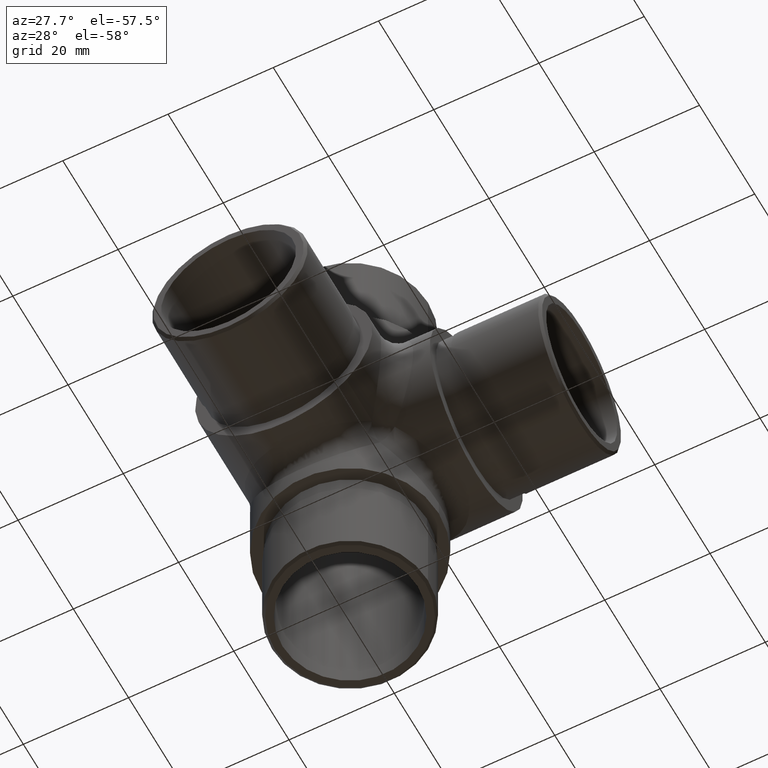
[diagram: clean part render]
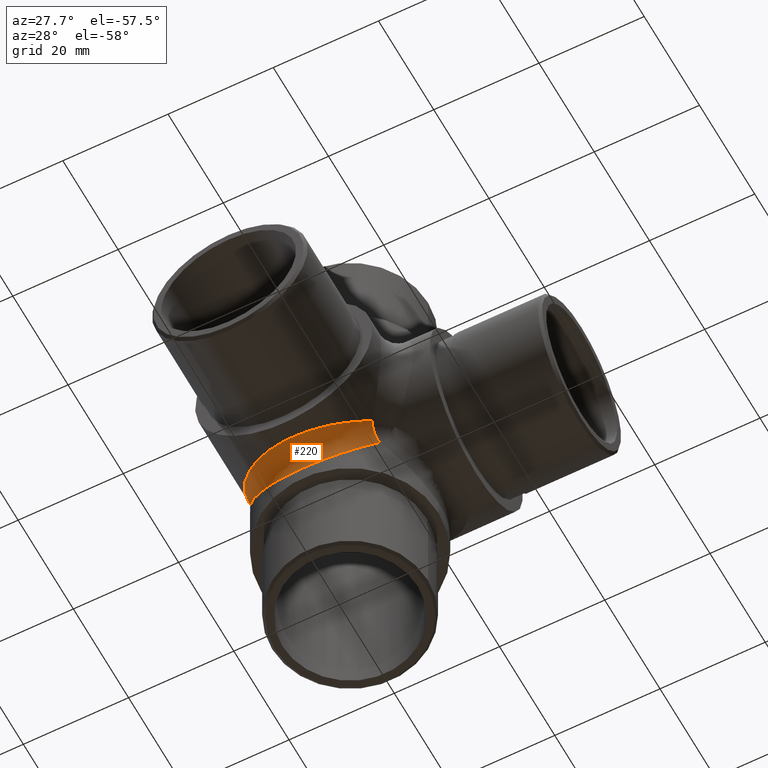
[diagram: same view with one face highlighted and labeled with its STEP entity id]
A machine part, auxiliary view. The second image highlights one B-rep face of the part: STEP entity #220.
In plain terms, the highlighted face is a freeform B-spline surface patch.
Its self-contained STEP definition (entity closure, byte-faithful):
#75 = CARTESIAN_POINT ( 'NONE',  ( 7.453532806663808700, 28.80349585227579100, -15.19650414771683000 ) ) ;
#163 = CARTESIAN_POINT ( 'NONE',  ( -1.902788127804586200, 27.23690582862855400, -16.76309417136459600 ) ) ;
#204 = CARTESIAN_POINT ( 'NONE',  ( 10.70188425443897800, 27.86280451610095500, -13.04133064285715300 ) ) ;
#220 = ADVANCED_FACE ( 'NONE', ( #12002 ), #5267, .F. ) ;
#285 = CARTESIAN_POINT ( 'NONE',  ( -16.85000000000501400, 42.14938286354089300, -1.850617136462172400 ) ) ;
#373 = CARTESIAN_POINT ( 'NONE',  ( -14.92931218146492100, 34.11833234476084400, -7.985904076284272800 ) ) ;
#542 = CARTESIAN_POINT ( 'NONE',  ( -0.5560784148173243400, 19.61442305918737700, -30.17443793565359300 ) ) ;
#1099 = CARTESIAN_POINT ( 'NONE',  ( 8.672491884074681000, 26.09440299057065400, -14.47047048483049800 ) ) ;
#1190 = CARTESIAN_POINT ( 'NONE',  ( 3.218198065705942100, 27.42345785544861400, -16.57654214454281000 ) ) ;
#1230 = CARTESIAN_POINT ( 'NONE',  ( 8.672491884075446600, 29.52952951516108700, -17.90559700942070600 ) ) ;
#1256 = CARTESIAN_POINT ( 'NONE',  ( 11.91474926299158100, 29.25682361225024800, -11.91474926299507000 ) ) ;
#1273 = CARTESIAN_POINT ( 'NONE',  ( 2.476042411215243700, 27.31240444192856700, -20.64904257481253300 ) ) ;
#1323 = CARTESIAN_POINT ( 'NONE',  ( -10.29547838493662600, 30.56406770563192100, -13.43593229436404400 ) ) ;
#1454 = CARTESIAN_POINT ( 'NONE',  ( -15.64424271561143300, 37.52568953613314300, -8.011238763878941100 ) ) ;
#1494 = CARTESIAN_POINT ( 'NONE',  ( -16.84999999999965000, 42.34566038153116800, -2.047061189644707700 ) ) ;
#1572 = CARTESIAN_POINT ( 'NONE',  ( -16.85000000000000100, 43.99999999999136000, 0.0000000000000000000 ) ) ;
#1711 = DIRECTION ( 'NONE',  ( 0.5773502691896256200, 0.5773502691896258400, 0.5773502691896258400 ) ) ;
#1762 = CARTESIAN_POINT ( 'NONE',  ( -16.85000000000000100, 26.36358636401375600, -21.82309936558652900 ) ) ;
#1962 = VERTEX_POINT ( 'NONE', #6215 ) ;
#1976 =( BOUNDED_CURVE ( )  B_SPLINE_CURVE ( 3, ( #5643, #542, #1762, #1572 ),
 .UNSPECIFIED., .F., .F. ) 
 B_SPLINE_CURVE_WITH_KNOTS ( ( 4, 4 ),
 ( 5.497787143782138000, 7.853981633974482800 ),
 .UNSPECIFIED. ) 
 CURVE ( )  GEOMETRIC_REPRESENTATION_ITEM ( )  RATIONAL_B_SPLINE_CURVE ( ( 1.000000000000000000, 0.5884556215767264800, 0.5884556215767264800, 1.000000000000000000 ) ) 
 REPRESENTATION_ITEM ( '' )  );
#2143 = CARTESIAN_POINT ( 'NONE',  ( 10.70188425443989300, 30.95866935713463200, -16.13719548389040200 ) ) ;
#2183 = CARTESIAN_POINT ( 'NONE',  ( -3.291881413840427300, 27.45399902426206400, -20.47383503525010400 ) ) ;
#2225 = CARTESIAN_POINT ( 'NONE',  ( 6.455366254731939300, 24.71360356666519200, -15.58636834060196300 ) ) ;
#2317 = CARTESIAN_POINT ( 'NONE',  ( -2.550014675954540300, 27.31371803310330600, -16.68628196688999700 ) ) ;
#2365 = CARTESIAN_POINT ( 'NONE',  ( -14.46498603253746200, 35.13117170450301100, -8.868828295482273900 ) ) ;
#2506 = CARTESIAN_POINT ( 'NONE',  ( -10.05015254536300500, 27.23344829585098400, -13.54994706065970600 ) ) ;
#3190 = CARTESIAN_POINT ( 'NONE',  ( 7.213578146960740500, 25.12948028608520100, -15.25027612370944000 ) ) ;
#3236 = CARTESIAN_POINT ( 'NONE',  ( 1.898126128376642200, 27.23468810016805400, -16.76531189982336700 ) ) ;
#3281 = CARTESIAN_POINT ( 'NONE',  ( -3.896595488052136100, 27.56090949159773700, -16.43909050839190300 ) ) ;
#3332 = CARTESIAN_POINT ( 'NONE',  ( 1.652916447724383600, 27.21088153747400900, -20.77466587201709600 ) ) ;
#3371 = CARTESIAN_POINT ( 'NONE',  ( -16.84999999999999800, 43.99999999999605600, 3.866285472213043400E-012 ) ) ;
#3424 = CARTESIAN_POINT ( 'NONE',  ( -16.84999999999999800, 43.99999999999563000, 3.456069506991500100E-012 ) ) ;
#3455 = CARTESIAN_POINT ( 'NONE',  ( -16.85000000000000100, 43.99999999999136000, 0.0000000000000000000 ) ) ;
#3468 = CARTESIAN_POINT ( 'NONE',  ( -7.953184658403215800, 29.12204700500458200, -18.40981127272918300 ) ) ;
#3549 = CARTESIAN_POINT ( 'NONE',  ( -13.04048794398737200, 30.75633850783578500, -10.70291108598500800 ) ) ;
#3769 = CARTESIAN_POINT ( 'NONE',  ( 14.74317638773951200, 29.25682361225184300, -14.74317638773951300 ) ) ;
#4176 = CARTESIAN_POINT ( 'NONE',  ( -5.684054341647695600, 28.11610382264072400, -19.65455402360686000 ) ) ;
#4224 = CARTESIAN_POINT ( 'NONE',  ( 10.97194022141144600, 31.14244169541671100, -12.85755830457519800 ) ) ;
#4266 = CARTESIAN_POINT ( 'NONE',  ( 10.29885095196055100, 30.56346336409610800, -13.43653663588252900 ) ) ;
#4304 = CARTESIAN_POINT ( 'NONE',  ( -5.684054341647159200, 24.34544597638449700, -15.88389617735100000 ) ) ;
#4353 = CARTESIAN_POINT ( 'NONE',  ( 11.32987064038780600, 31.50037211439286400, -15.46689860027742100 ) ) ;
#4388 = CARTESIAN_POINT ( 'NONE',  ( -16.85000000000000100, 22.17690063440801400, -17.63641363597571000 ) ) ;
#4486 = CARTESIAN_POINT ( 'NONE',  ( -8.897202919169362900, 29.59422045952774400, -14.40577954045980900 ) ) ;
#4489 = VERTEX_POINT ( 'NONE', #9643 ) ;
#5113 = EDGE_CURVE ( 'NONE', #1962, #11778, #12807, .T. ) ;
#5248 = CARTESIAN_POINT ( 'NONE',  ( 0.0006641771074964667600, 27.12971158839430100, -20.87510465173873100 ) ) ;
#5267 =( BOUNDED_SURFACE ( )  B_SPLINE_SURFACE ( 3, 2, ( 
 ( #8356, #4224, #5392 ),
 ( #4353, #4266, #8321 ),
 ( #2143, #10391, #204 ),
 ( #6243, #12619, #7261 ),
 ( #1230, #75, #1099 ),
 ( #12531, #7448, #3190 ),
 ( #11492, #9458, #2225 ),
 ( #7394, #11540, #6415 ),
 ( #6290, #1190, #11448 ),
 ( #1273, #3236, #11577 ),
 ( #3332, #8489, #5299 ),
 ( #5248, #7351, #6334 ),
 ( #5348, #12492, #7301 ),
 ( #10435, #163, #8409 ),
 ( #2183, #2317, #9421 ),
 ( #10346, #3281, #9510 ),
 ( #4176, #10483, #4304 ),
 ( #11400, #12574, #6370 ),
 ( #3468, #7629, #11621 ),
 ( #7582, #5523, #6634 ),
 ( #5429, #4486, #2506 ),
 ( #12662, #1323, #11748 ),
 ( #10654, #7533, #7490 ),
 ( #11798, #9595, #3549 ),
 ( #11706, #9693, #6458 ),
 ( #8533, #2365, #373 ),
 ( #1454, #5562, #11669 ),
 ( #9553, #12751, #6547 ),
 ( #1494, #285, #8707 ),
 ( #10744, #3371, #3424 ) ),
 .UNSPECIFIED., .F., .F., .T. ) 
 B_SPLINE_SURFACE_WITH_KNOTS ( ( 4, 2, 2, 2, 2, 2, 2, 2, 2, 2, 2, 2, 2, 2, 4 ),
 ( 3, 3 ),
 ( 5.497787143782138000, 5.645049299419172300, 5.792311455056207600, 5.939573610693242000, 6.086835766330276300, 6.234097921967310700, 6.381360077604345100, 6.528622233241379500, 6.675884388878413800, 6.823146544515448200, 6.970408700152482600, 7.117670855789517000, 7.264933011426551300, 7.559457322700620100, 7.853981633974689700 ),
 ( 0.0000000000000000000, 1.000000000000000000 ),
 .UNSPECIFIED. ) 
 GEOMETRIC_REPRESENTATION_ITEM ( )  RATIONAL_B_SPLINE_SURFACE ( (
 ( 1.000000000000000000, 0.8660254037843963000, 1.000000000000000000),
 ( 1.000000000000000000, 0.8518581657886972200, 1.000000000000000000),
 ( 1.000000000000000000, 0.8373286426275246000, 1.000000000000000000),
 ( 1.000000000000000000, 0.8087926538586344100, 1.000000000000000000),
 ( 1.000000000000000000, 0.7947862272503000100, 1.000000000000000000),
 ( 1.000000000000000000, 0.7686809988149589900, 1.000000000000000000),
 ( 1.000000000000000000, 0.7565887938669860800, 1.000000000000000000),
 ( 1.000000000000000000, 0.7357213436838919700, 1.000000000000000000),
 ( 1.000000000000000000, 0.7269560325907945500, 1.000000000000000000),
 ( 1.000000000000000000, 0.7139188639524968200, 1.000000000000000000),
 ( 1.000000000000000000, 0.7096565420258245100, 1.000000000000000000),
 ( 1.000000000000000000, 0.7062584530666733400, 1.000000000000000000),
 ( 1.000000000000000000, 0.7071257296527636600, 1.000000000000000000),
 ( 1.000000000000000000, 0.7138650231661253200, 1.000000000000000000),
 ( 1.000000000000000000, 0.7197312459723248500, 1.000000000000000000),
 ( 1.000000000000000000, 0.7356308174509613700, 1.000000000000000000),
 ( 1.000000000000000000, 0.7456538433597199600, 1.000000000000000000),
 ( 1.000000000000000000, 0.7685763963374949700, 1.000000000000000000),
 ( 1.000000000000000000, 0.7814668926402906800, 1.000000000000000000),
 ( 1.000000000000000000, 0.8086913583441904800, 1.000000000000000000),
 ( 1.000000000000000000, 0.8230199978452240600, 1.000000000000000000),
 ( 1.000000000000000000, 0.8517664595826667200, 1.000000000000000000),
 ( 1.000000000000000000, 0.8661820557088961700, 1.000000000000000000),
 ( 1.000000000000000000, 0.8939364460771464000, 1.000000000000000000),
 ( 1.000000000000000000, 0.9072747350166828800, 1.000000000000000000),
 ( 1.000000000000000000, 0.9442614554962115400, 1.000000000000000000),
 ( 1.000000000000000000, 0.9647745980452303600, 1.000000000000000000),
 ( 1.000000000000000000, 0.9926394134256499900, 1.000000000000000000),
 ( 1.000000000000000000, 1.000049692711910200, 1.000000000000000000),
 ( 1.000000000000000000, 1.000000000000000000, 1.000000000000000000) ) ) 
 REPRESENTATION_ITEM ( '' )  SURFACE ( )  );
#5299 = CARTESIAN_POINT ( 'NONE',  ( 1.652916447724159400, 23.22533412797426400, -16.78911846251734700 ) ) ;
#5348 = CARTESIAN_POINT ( 'NONE',  ( -0.8284491946670021800, 27.15006517924334900, -20.84991934792893900 ) ) ;
#5392 = CARTESIAN_POINT ( 'NONE',  ( 11.91474926299332500, 29.25682361225184600, -11.91474926299332000 ) ) ;
#5429 = CARTESIAN_POINT ( 'NONE',  ( -10.05015254536316300, 30.45005293933206400, -16.76655170414037600 ) ) ;
#5523 = CARTESIAN_POINT ( 'NONE',  ( -8.176670518205581200, 29.17750162343279600, -14.82249837655891200 ) ) ;
#5562 = CARTESIAN_POINT ( 'NONE',  ( -15.35861035222339600, 36.78307808782508200, -7.216921912150852800 ) ) ;
#5643 = CARTESIAN_POINT ( 'NONE',  ( 11.91474926299332000, 32.08525073699802700, -14.74317638773951300 ) ) ;
#6154 = EDGE_CURVE ( 'NONE', #4489, #1962, #1976, .T. ) ;
#6215 = CARTESIAN_POINT ( 'NONE',  ( -16.85000000000000100, 43.99999999999136000, 0.0000000000000000000 ) ) ;
#6243 = CARTESIAN_POINT ( 'NONE',  ( 9.373182306956270100, 29.97323683195122300, -17.35655857885286900 ) ) ;
#6290 = CARTESIAN_POINT ( 'NONE',  ( 4.098501440727107000, 27.63513160846504800, -20.24970361800262000 ) ) ;
#6293 = EDGE_CURVE ( 'NONE', #4489, #11778, #12599, .T. ) ;
#6334 = CARTESIAN_POINT ( 'NONE',  ( 0.0006641771075582662800, 23.12489534825262900, -16.87028841159707700 ) ) ;
#6370 = CARTESIAN_POINT ( 'NONE',  ( -7.212377329059556500, 25.12877751787920000, -15.25084406827803600 ) ) ;
#6415 = CARTESIAN_POINT ( 'NONE',  ( 4.897821804584547000, 24.02400891518497200, -16.14366665606630800 ) ) ;
#6458 = CARTESIAN_POINT ( 'NONE',  ( -13.55073836021649400, 31.56537478992249000, -10.04908560142513000 ) ) ;
#6547 = CARTESIAN_POINT ( 'NONE',  ( -16.60464659856429000, 39.90636772237249400, -3.308283159613960600 ) ) ;
#6634 = CARTESIAN_POINT ( 'NONE',  ( -9.372077820912428700, 26.64252823571175100, -14.02750116201973400 ) ) ;
#6805 = DIRECTION ( 'NONE',  ( 0.0000000000000000000, -0.7071067811865475700, 0.7071067811865475700 ) ) ;
#7261 = CARTESIAN_POINT ( 'NONE',  ( 9.373182306955598600, 26.64344142113849000, -14.02676316804088900 ) ) ;
#7301 = CARTESIAN_POINT ( 'NONE',  ( -0.8284491946670178300, 23.15008065206242100, -16.84993482074803900 ) ) ;
#7351 = CARTESIAN_POINT ( 'NONE',  ( -0.002894757782350462600, 27.13917114571232500, -16.86082885427725800 ) ) ;
#7394 = CARTESIAN_POINT ( 'NONE',  ( 4.897821804585033700, 27.85633334392534300, -19.97599108480638500 ) ) ;
#7448 = CARTESIAN_POINT ( 'NONE',  ( 6.008535096179440600, 28.18263104794684900, -15.81736895204380400 ) ) ;
#7490 = CARTESIAN_POINT ( 'NONE',  ( -11.92956498047801600, 29.23965307503073400, -11.92862569235590300 ) ) ;
#7533 = CARTESIAN_POINT ( 'NONE',  ( -10.97414848844010400, 31.11266101317751500, -12.88733898682115800 ) ) ;
#7582 = CARTESIAN_POINT ( 'NONE',  ( -9.372077820913249400, 29.97249883797191200, -17.35747176427960900 ) ) ;
#7629 = CARTESIAN_POINT ( 'NONE',  ( -6.730578844065767000, 28.47047760509532900, -15.52952239489637500 ) ) ;
#8049 = EDGE_LOOP ( 'NONE', ( #8658, #11369, #11958 ) ) ;
#8321 = CARTESIAN_POINT ( 'NONE',  ( 11.32987064039008400, 28.53310139970918200, -12.49962788559656300 ) ) ;
#8356 = CARTESIAN_POINT ( 'NONE',  ( 11.91474926299415500, 32.08525073699886600, -14.74317638773951200 ) ) ;
#8409 = CARTESIAN_POINT ( 'NONE',  ( -2.474728434441723700, 23.35071624569000200, -16.68779046810474000 ) ) ;
#8489 = CARTESIAN_POINT ( 'NONE',  ( 1.262782113314880200, 27.18212720299139200, -16.81787279700174400 ) ) ;
#8533 = CARTESIAN_POINT ( 'NONE',  ( -14.92931218146224900, 36.01409592370206500, -9.881667655225893300 ) ) ;
#8658 = ORIENTED_EDGE ( 'NONE', *, *, #6154, .F. ) ;
#8707 = CARTESIAN_POINT ( 'NONE',  ( -16.85000000000033500, 41.95293881036843000, -1.654339618491550600 ) ) ;
#9421 = CARTESIAN_POINT ( 'NONE',  ( -3.291881413839627500, 23.52616496474125500, -16.54600097572958000 ) ) ;
#9458 = CARTESIAN_POINT ( 'NONE',  ( 5.293373670574526500, 27.93927739333780400, -16.06072260665371900 ) ) ;
#9510 = CARTESIAN_POINT ( 'NONE',  ( -4.896550648903415000, 24.02353177702992700, -16.14405225692578600 ) ) ;
#9553 = CARTESIAN_POINT ( 'NONE',  ( -16.60464659856667100, 40.69171684038298800, -4.093632277625005100 ) ) ;
#9581 = CARTESIAN_POINT ( 'NONE',  ( -0.5560784148195673200, 13.82556206434067800, -24.38557694080256500 ) ) ;
#9595 = CARTESIAN_POINT ( 'NONE',  ( -12.24997251432379900, 32.33242592276115300, -11.66757407722426300 ) ) ;
#9643 = CARTESIAN_POINT ( 'NONE',  ( 11.91474926299332000, 32.08525073699802700, -14.74317638773951300 ) ) ;
#9693 = CARTESIAN_POINT ( 'NONE',  ( -12.85083583709722400, 33.00127407105137700, -10.99872592894415600 ) ) ;
#10346 = CARTESIAN_POINT ( 'NONE',  ( -4.896550648903395400, 27.85594774306548200, -19.97646822296143300 ) ) ;
#10391 = CARTESIAN_POINT ( 'NONE',  ( 9.602003533385193600, 30.05808296732911000, -13.94191703266167400 ) ) ;
#10435 = CARTESIAN_POINT ( 'NONE',  ( -2.474728434442063000, 27.31220953188662300, -20.64928375430135400 ) ) ;
#10483 = CARTESIAN_POINT ( 'NONE',  ( -4.587687804161685500, 27.72852275540498500, -16.27147724458659500 ) ) ;
#10654 = CARTESIAN_POINT ( 'NONE',  ( -11.92956498047870500, 32.07137430763658900, -14.76034692496173200 ) ) ;
#10744 = CARTESIAN_POINT ( 'NONE',  ( -16.84999999999999800, 43.99999999999647600, 4.276501437434586300E-012 ) ) ;
#10877 = AXIS2_PLACEMENT_3D ( 'NONE', #3769, #1711, #6805 ) ;
#11369 = ORIENTED_EDGE ( 'NONE', *, *, #6293, .T. ) ;
#11400 = CARTESIAN_POINT ( 'NONE',  ( -7.212377329060193400, 28.74915593171344200, -18.87122248211215900 ) ) ;
#11448 = CARTESIAN_POINT ( 'NONE',  ( 4.098501440726559900, 23.75029638198874000, -16.36486839152635000 ) ) ;
#11492 = CARTESIAN_POINT ( 'NONE',  ( 6.455366254732503300, 28.41363165938947700, -19.28639643332616800 ) ) ;
#11540 = CARTESIAN_POINT ( 'NONE',  ( 3.894544055675743400, 27.55760320516045800, -16.44239679483107300 ) ) ;
#11577 = CARTESIAN_POINT ( 'NONE',  ( 2.476042411215157100, 23.35095742517882300, -16.68759555806287400 ) ) ;
#11621 = CARTESIAN_POINT ( 'NONE',  ( -7.953184658402575400, 25.59018872726217700, -14.87795299498736800 ) ) ;
#11669 = CARTESIAN_POINT ( 'NONE',  ( -15.64424271561289500, 35.98876123610627800, -6.474310463855656100 ) ) ;
#11706 = CARTESIAN_POINT ( 'NONE',  ( -13.55073836021897900, 33.95091439857046100, -12.43462521007118000 ) ) ;
#11748 = CARTESIAN_POINT ( 'NONE',  ( -11.32890113095516100, 28.53201579890897600, -12.50050521766180400 ) ) ;
#11778 = VERTEX_POINT ( 'NONE', #12113 ) ;
#11798 = CARTESIAN_POINT ( 'NONE',  ( -13.04048794398833500, 33.29708891400703400, -13.24366149215446600 ) ) ;
#11958 = ORIENTED_EDGE ( 'NONE', *, *, #5113, .F. ) ;
#12002 = FACE_OUTER_BOUND ( 'NONE', #8049, .T. ) ;
#12113 = CARTESIAN_POINT ( 'NONE',  ( 11.91474926299158100, 29.25682361225024800, -11.91474926299507000 ) ) ;
#12492 = CARTESIAN_POINT ( 'NONE',  ( -0.6251163988779611100, 27.14919196491966200, -16.85080803506992100 ) ) ;
#12531 = CARTESIAN_POINT ( 'NONE',  ( 7.213578146961352500, 28.74972387628243100, -18.87051971390615900 ) ) ;
#12574 = CARTESIAN_POINT ( 'NONE',  ( -6.007917976353692100, 28.18568850857484500, -15.81431149141673100 ) ) ;
#12599 = CIRCLE ( 'NONE', #10877, 4.000000000000000000 ) ;
#12619 = CARTESIAN_POINT ( 'NONE',  ( 8.179165438594274900, 29.17554684306502500, -14.82445315692782700 ) ) ;
#12662 = CARTESIAN_POINT ( 'NONE',  ( -11.32890113095662700, 31.49949478233048000, -15.46798420108238600 ) ) ;
#12751 = CARTESIAN_POINT ( 'NONE',  ( -16.53677265077944700, 40.27456015560165500, -3.725439844406244600 ) ) ;
#12807 =( BOUNDED_CURVE ( )  B_SPLINE_CURVE ( 3, ( #3455, #4388, #9581, #1256 ),
 .UNSPECIFIED., .F., .T. ) 
 B_SPLINE_CURVE_WITH_KNOTS ( ( 4, 4 ),
 ( 4.712388980384689700, 7.068583470576888000 ),
 .UNSPECIFIED. ) 
 CURVE ( )  GEOMETRIC_REPRESENTATION_ITEM ( )  RATIONAL_B_SPLINE_CURVE ( ( 1.000000000000000000, 0.5884556215767716700, 0.5884556215767716700, 1.000000000000000000 ) ) 
 REPRESENTATION_ITEM ( '' )  );